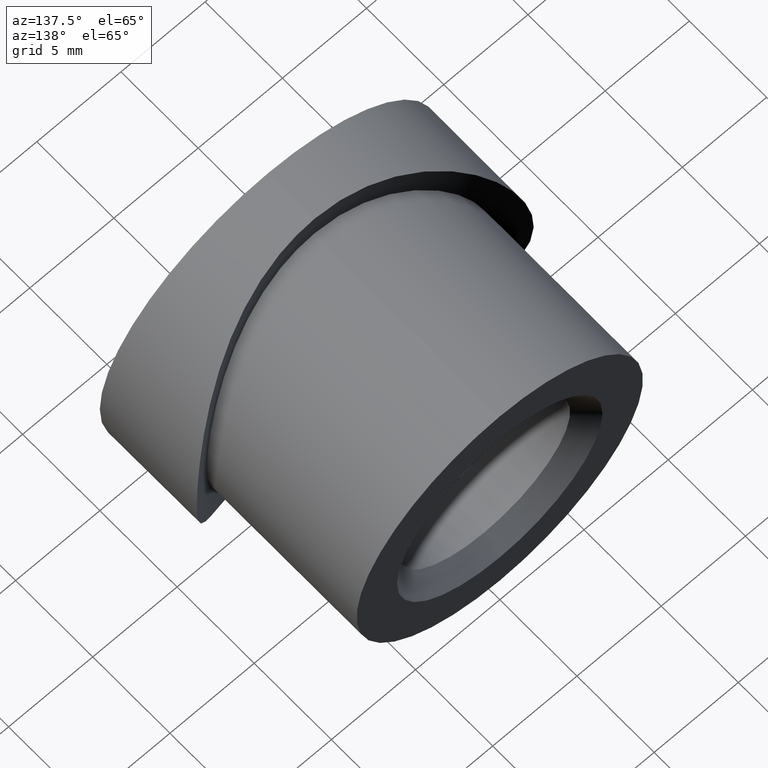
[diagram: clean part render]
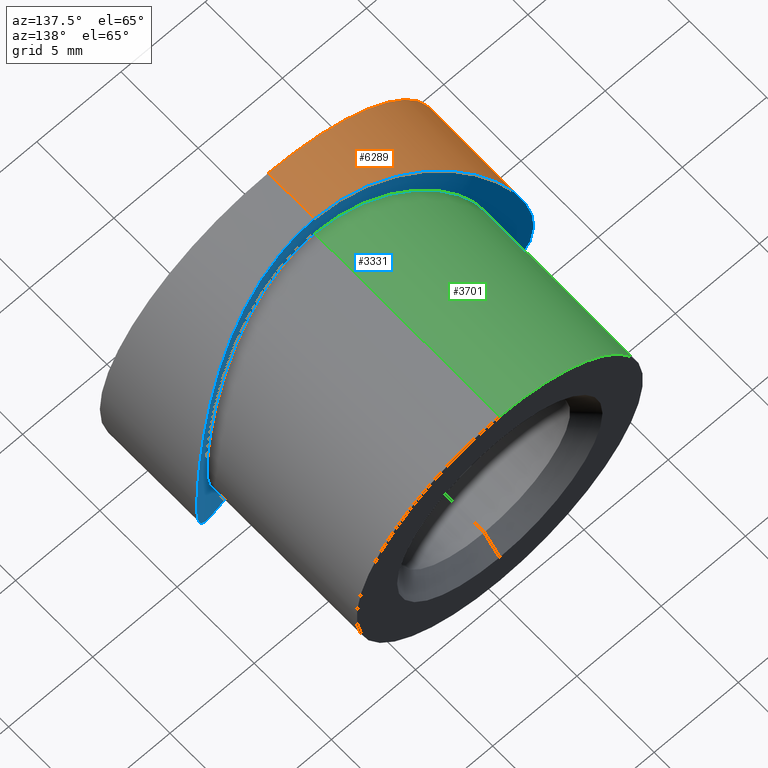
[diagram: same view with three faces highlighted in distinct colors, each labeled with its STEP entity id]
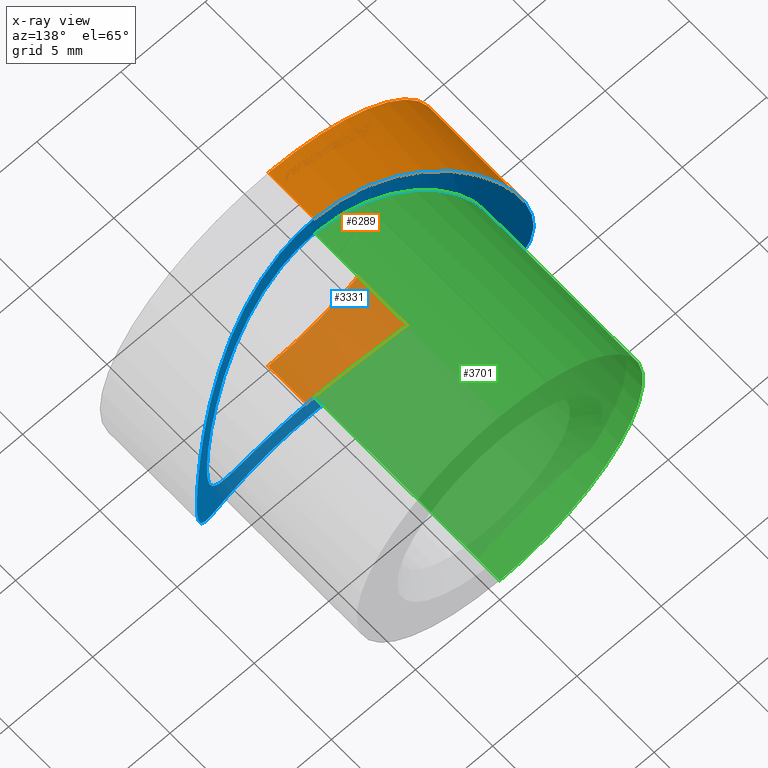
[diagram: x-ray of the same camera — body ghosted, the three highlighted faces saturated]
A machine part, auxiliary view with three faces highlighted in distinct colors.
The next image is the same camera in x-ray (body ghosted, the three faces saturated) — at least one of them is partly hidden behind the body in this view.
Their STEP definitions:

[orange] entity #6289 — the highlighted cylindrical surface (partial cylindrical patch) has radius 10 mm, axis along (-0, -1, -0).
#227 = CARTESIAN_POINT ( 'NONE',  ( 1.225188933121142300E-015, 2.999999999999997300, 10.00000000000000000 ) ) ;
#729 = CYLINDRICAL_SURFACE ( 'NONE', #4367, 10.00000000000000000 ) ;
#733 = DIRECTION ( 'NONE',  ( 0.0000000000000000000, 0.0000000000000000000, -1.000000000000000000 ) ) ;
#862 = CARTESIAN_POINT ( 'NONE',  ( -7.533810538168605600, 4.769737268852943600, -6.607168231742838000 ) ) ;
#1011 = CARTESIAN_POINT ( 'NONE',  ( -5.060580940614070000, 3.775131084890334800, -8.631096454425890100 ) ) ;
#1167 = DIRECTION ( 'NONE',  ( -0.0000000000000000000, -1.000000000000000000, -0.0000000000000000000 ) ) ;
#1343 = EDGE_CURVE ( 'NONE', #13719, #6485, #11936, .T. ) ;
#1392 = CARTESIAN_POINT ( 'NONE',  ( 0.0000000000000000000, 0.0000000000000000000, -10.00000000000000000 ) ) ;
#1566 = VECTOR ( 'NONE', #1167, 1000.000000000000000 ) ;
#1922 = EDGE_CURVE ( 'NONE', #13719, #7473, #4121, .T. ) ;
#2067 = CARTESIAN_POINT ( 'NONE',  ( -4.192284173626582300, 3.526909901820010500, 9.084705050694509500 ) ) ;
#2121 = CARTESIAN_POINT ( 'NONE',  ( -4.490351264357150800, 3.606612557192649500, -8.941031874722050100 ) ) ;
#2175 = CARTESIAN_POINT ( 'NONE',  ( -1.339534587672687000, 3.040475105947003000, 9.932229964423770600 ) ) ;
#2421 = CARTESIAN_POINT ( 'NONE',  ( -1.466283327460540800E-016, 2.999999999999998700, -10.00000000000000000 ) ) ;
#3091 = EDGE_LOOP ( 'NONE', ( #12580, #4343, #12506, #8846 ) ) ;
#3164 = CARTESIAN_POINT ( 'NONE',  ( -4.193427904635070600, 3.527150437412382500, -9.084283319739130400 ) ) ;
#3267 = CARTESIAN_POINT ( 'NONE',  ( -3.280779213787568400, 3.310652688593339800, -9.469564501550749500 ) ) ;
#3319 = CARTESIAN_POINT ( 'NONE',  ( -5.866237467346308200, 4.051616493001249700, -8.104928215079716800 ) ) ;
#3373 = CARTESIAN_POINT ( 'NONE',  ( -3.279813348102926400, 3.319128784054842900, 9.452708858731764300 ) ) ;
#3875 = EDGE_CURVE ( 'NONE', #13146, #6485, #14782, .T. ) ;
#4121 = B_SPLINE_CURVE_WITH_KNOTS ( 'NONE', 3,
 ( #4395, #12639, #2175, #14813, #7847, #3373, #4537, #2067, #8965, #14908, #10286, #4490, #6810, #14963, #4441, #7993, #15013, #5696, #11361, #11412, #12482, #13681, #5539, #8045, #7944, #12533, #6715, #12435, #9119, #5587, #5643, #12585, #14863, #10137, #862, #7896, #13723, #9070, #3319, #10093, #1011, #2121, #3164, #3267, #11260, #4342, #5491, #13631, #10186, #6766 ),
 .UNSPECIFIED., .F., .F.,
 ( 4, 2, 2, 2, 2, 2, 2, 2, 2, 2, 2, 2, 2, 2, 2, 2, 2, 2, 2, 2, 2, 2, 2, 2, 4 ),
 ( 0.03206156997506608800, 0.03406157948369011000, 0.03506158423800211800, 0.03606158899231412500, 0.03706159374662613300, 0.03806159850093814000, 0.04006160800956216200, 0.04206161751818617700, 0.04406162702681019900, 0.04506163178112220600, 0.04606163653543421400, 0.04706164128974622800, 0.04806164604405823600, 0.05006165555268225800, 0.05106166030699427200, 0.05206166506130627300, 0.05406167456993030100, 0.05606168407855431600, 0.05706168883286633100, 0.05806169358717833800, 0.05906169834149034600, 0.06006170309580236000, 0.06206171260442637500, 0.06306171735873837600, 0.06406172211305039000 ),
 .UNSPECIFIED. ) ;
#4342 = CARTESIAN_POINT ( 'NONE',  ( -1.679616028608141600, 3.080739766579398500, -9.863492310789359500 ) ) ;
#4343 = ORIENTED_EDGE ( 'NONE', *, *, #1922, .T. ) ;
#4367 = AXIS2_PLACEMENT_3D ( 'NONE', #14354, #9969, #733 ) ;
#4395 = CARTESIAN_POINT ( 'NONE',  ( 1.225188933121142300E-015, 2.999999999999997300, 10.00000000000000000 ) ) ;
#4441 = CARTESIAN_POINT ( 'NONE',  ( -7.943393107603061900, 4.984194912412932300, 6.108133320963098400 ) ) ;
#4490 = CARTESIAN_POINT ( 'NONE',  ( -6.141152519904959900, 4.148660270383914800, 7.918680788573660800 ) ) ;
#4537 = CARTESIAN_POINT ( 'NONE',  ( -3.589299974420798700, 3.383809103518677000, 9.339381036459382600 ) ) ;
#5179 = CARTESIAN_POINT ( 'NONE',  ( 1.224646799147353300E-015, 0.0000000000000000000, 10.00000000000000000 ) ) ;
#5491 = CARTESIAN_POINT ( 'NONE',  ( -1.350133940281849700, 3.050826384924564000, -9.914156226876418300 ) ) ;
#5509 = DIRECTION ( 'NONE',  ( 0.0000000000000000000, 1.000000000000000000, 0.0000000000000000000 ) ) ;
#5539 = CARTESIAN_POINT ( 'NONE',  ( -9.914589858655853400, 6.225566593096225200, 1.346806544646832700 ) ) ;
#5587 = CARTESIAN_POINT ( 'NONE',  ( -9.455690801299363500, 5.902728133671695700, -3.270852961406679700 ) ) ;
#5643 = CARTESIAN_POINT ( 'NONE',  ( -9.343665910047683100, 5.827120587215029300, -3.577969511357527400 ) ) ;
#5696 = CARTESIAN_POINT ( 'NONE',  ( -9.340152656728882600, 5.824775826013354400, 3.587146967649277300 ) ) ;
#6163 = FACE_OUTER_BOUND ( 'NONE', #3091, .T. ) ;
#6289 = ADVANCED_FACE ( 'NONE', ( #6163 ), #729, .T. ) ;
#6485 = VERTEX_POINT ( 'NONE', #5179 ) ;
#6715 = CARTESIAN_POINT ( 'NONE',  ( -9.933142741749932700, 6.238170385896064700, -1.334042004649898000 ) ) ;
#6766 = CARTESIAN_POINT ( 'NONE',  ( -1.466283327460540800E-016, 2.999999999999998700, -10.00000000000000000 ) ) ;
#6810 = CARTESIAN_POINT ( 'NONE',  ( -6.632287662857884000, 4.352212301968402000, 7.511286137882906100 ) ) ;
#7473 = VERTEX_POINT ( 'NONE', #2421 ) ;
#7758 = DIRECTION ( 'NONE',  ( 0.0000000000000000000, 0.0000000000000000000, 1.000000000000000000 ) ) ;
#7847 = CARTESIAN_POINT ( 'NONE',  ( -2.643719411718161300, 3.205552684794162700, 9.649954820539045700 ) ) ;
#7896 = CARTESIAN_POINT ( 'NONE',  ( -6.853058287576113000, 4.454525878575706700, -7.289638909025422100 ) ) ;
#7944 = CARTESIAN_POINT ( 'NONE',  ( -9.999951102503544600, 6.288160967213432400, 0.3374805287368105600 ) ) ;
#7993 = CARTESIAN_POINT ( 'NONE',  ( -8.655024412312256400, 5.386936445333434500, 5.049488998983402900 ) ) ;
#8045 = CARTESIAN_POINT ( 'NONE',  ( -9.982649008586786700, 6.275354645668334000, 0.6780108446228543300 ) ) ;
#8846 = ORIENTED_EDGE ( 'NONE', *, *, #3875, .T. ) ;
#8965 = CARTESIAN_POINT ( 'NONE',  ( -4.485778423712710100, 3.605336289160060200, 8.943352755387348200 ) ) ;
#9070 = CARTESIAN_POINT ( 'NONE',  ( -6.122025382636536500, 4.149229360737487000, -7.913471650587375400 ) ) ;
#9087 = CARTESIAN_POINT ( 'NONE',  ( 0.0000000000000000000, 0.0000000000000000000, 0.0000000000000000000 ) ) ;
#9119 = CARTESIAN_POINT ( 'NONE',  ( -9.650494274248703900, 6.036801916075216200, -2.641311774026906100 ) ) ;
#9409 = CARTESIAN_POINT ( 'NONE',  ( 1.224646799147353300E-015, 20.00000000000000000, 10.00000000000000000 ) ) ;
#9969 = DIRECTION ( 'NONE',  ( -0.0000000000000000000, -1.000000000000000000, -0.0000000000000000000 ) ) ;
#10039 = DIRECTION ( 'NONE',  ( -0.0000000000000000000, -1.000000000000000000, -0.0000000000000000000 ) ) ;
#10093 = CARTESIAN_POINT ( 'NONE',  ( -5.335513783503224700, 3.864570505502365400, -8.463740075223245900 ) ) ;
#10137 = CARTESIAN_POINT ( 'NONE',  ( -7.938071713497612900, 4.981302196225715100, -6.115290072296238200 ) ) ;
#10186 = CARTESIAN_POINT ( 'NONE',  ( -0.3386291638565960300, 2.999999999999999100, -10.00000000000000000 ) ) ;
#10286 = CARTESIAN_POINT ( 'NONE',  ( -5.336798744618525000, 3.864947292741665000, 8.463060562553792500 ) ) ;
#11260 = CARTESIAN_POINT ( 'NONE',  ( -2.652604567547781000, 3.197282980631055900, -9.664473668154803600 ) ) ;
#11361 = CARTESIAN_POINT ( 'NONE',  ( -9.454076230187206800, 5.901630572325753800, 3.275573321296006800 ) ) ;
#11412 = CARTESIAN_POINT ( 'NONE',  ( -9.649490700514238700, 6.036097717235815500, 2.645045778444339300 ) ) ;
#11936 = LINE ( 'NONE', #9409, #1566 ) ;
#12078 = VECTOR ( 'NONE', #10039, 1000.000000000000000 ) ;
#12080 = AXIS2_PLACEMENT_3D ( 'NONE', #9087, #5509, #7758 ) ;
#12435 = CARTESIAN_POINT ( 'NONE',  ( -9.733647711116955000, 6.095535823642137500, -2.316862196032627400 ) ) ;
#12482 = CARTESIAN_POINT ( 'NONE',  ( -9.731545877590789900, 6.094050350619966100, 2.325241111260654600 ) ) ;
#12506 = ORIENTED_EDGE ( 'NONE', *, *, #12566, .T. ) ;
#12533 = CARTESIAN_POINT ( 'NONE',  ( -10.00009747873774800, 6.288268899935995500, -0.6706049915531011600 ) ) ;
#12566 = EDGE_CURVE ( 'NONE', #7473, #13146, #12823, .T. ) ;
#12580 = ORIENTED_EDGE ( 'NONE', *, *, #1343, .F. ) ;
#12585 = CARTESIAN_POINT ( 'NONE',  ( -8.964963698739582700, 5.579650160677067200, -4.478086615000441900 ) ) ;
#12639 = CARTESIAN_POINT ( 'NONE',  ( -0.6756809508334731300, 3.000000000000000400, 10.00000000000000200 ) ) ;
#12823 = LINE ( 'NONE', #14897, #12078 ) ;
#13146 = VERTEX_POINT ( 'NONE', #1392 ) ;
#13631 = CARTESIAN_POINT ( 'NONE',  ( -0.6802471019827781600, 3.010393125539073900, -9.982515676314138300 ) ) ;
#13681 = CARTESIAN_POINT ( 'NONE',  ( -9.864093923545578200, 6.188785303224160600, 1.676121254749238800 ) ) ;
#13719 = VERTEX_POINT ( 'NONE', #227 ) ;
#13723 = CARTESIAN_POINT ( 'NONE',  ( -6.615042013530144000, 4.350496375315599600, -7.506227248726698800 ) ) ;
#14354 = CARTESIAN_POINT ( 'NONE',  ( 0.0000000000000000000, 20.00000000000000000, 0.0000000000000000000 ) ) ;
#14782 = CIRCLE ( 'NONE', #12080, 10.00000000000000000 ) ;
#14813 = CARTESIAN_POINT ( 'NONE',  ( -2.318497733288400000, 3.157035515536005900, 9.733213986406479300 ) ) ;
#14863 = CARTESIAN_POINT ( 'NONE',  ( -8.652994366091226300, 5.385669894219551800, -5.053260699523557200 ) ) ;
#14897 = CARTESIAN_POINT ( 'NONE',  ( 0.0000000000000000000, 20.00000000000000000, -10.00000000000000000 ) ) ;
#14908 = CARTESIAN_POINT ( 'NONE',  ( -5.057392320905208300, 3.774114641570264900, 8.632991919745437700 ) ) ;
#14963 = CARTESIAN_POINT ( 'NONE',  ( -7.532671409876859200, 4.769299598262015200, 6.607989143368243400 ) ) ;
#15013 = CARTESIAN_POINT ( 'NONE',  ( -8.960341744308348000, 5.576730053995310900, 4.487379625044569700 ) ) ;

[blue] entity #3331 — the highlighted cylindrical surface (partial cylindrical patch) has radius 16.85 mm, axis along (-0, -0, 1).
#227 = CARTESIAN_POINT ( 'NONE',  ( 1.225188933121142300E-015, 2.999999999999997300, 10.00000000000000000 ) ) ;
#264 = EDGE_CURVE ( 'NONE', #7104, #5271, #9768, .T. ) ;
#405 = CARTESIAN_POINT ( 'NONE',  ( -6.404417320789222300, 4.259097162773285200, 5.615287087604626100 ) ) ;
#462 = CARTESIAN_POINT ( 'NONE',  ( -4.294532115864584800, 3.549551500944707200, 7.355836056765519400 ) ) ;
#507 = CARTESIAN_POINT ( 'NONE',  ( -6.209719928210005500, 4.184598051321241700, -5.810718880699787400 ) ) ;
#602 = CARTESIAN_POINT ( 'NONE',  ( 5.200472829868576100, 3.821044698431901300, -6.729058769454000300 ) ) ;
#647 = CARTESIAN_POINT ( 'NONE',  ( 7.625533637294972200, 4.822296754397847900, -3.795512805978792600 ) ) ;
#696 = CARTESIAN_POINT ( 'NONE',  ( 4.283565053052379700, 3.546508001620654500, 7.362677855416721200 ) ) ;
#750 = CARTESIAN_POINT ( 'NONE',  ( 6.209815640949301500, 4.184652053498751000, -5.810543141876783200 ) ) ;
#760 = FACE_BOUND ( 'NONE', #3865, .T. ) ;
#809 = CARTESIAN_POINT ( 'NONE',  ( 9.650600108130758400, 6.036871370074978300, 2.641093162837215800 ) ) ;
#857 = CARTESIAN_POINT ( 'NONE',  ( 9.914638269993375300, 6.225602332762767900, -1.346053886160625900 ) ) ;
#862 = CARTESIAN_POINT ( 'NONE',  ( -7.533810538168605600, 4.769737268852943600, -6.607168231742838000 ) ) ;
#962 = CARTESIAN_POINT ( 'NONE',  ( 4.497429352338558700, 3.599305889758773500, 8.955866558910884100 ) ) ;
#1011 = CARTESIAN_POINT ( 'NONE',  ( -5.060580940614070000, 3.775131084890334800, -8.631096454425890100 ) ) ;
#1177 = B_SPLINE_CURVE_WITH_KNOTS ( 'NONE', 3,
 ( #4177, #10978, #9942, #1747, #2943, #11037, #4128, #11150, #1906, #9113, #12581, #10045, #10086, #3108, #12527, #6710, #13718, #11408, #14856, #5637, #857, #7840, #9011, #9065, #2116, #12378, #809, #11200, #2010, #5533, #10230, #14904, #5584, #3313, #10180, #2062, #13675, #3211, #11356, #8913, #962, #4278, #14756, #4486, #11306, #6553, #7941, #14702, #7891, #7733 ),
 .UNSPECIFIED., .F., .F.,
 ( 4, 2, 2, 2, 2, 2, 2, 2, 2, 2, 2, 2, 2, 2, 2, 2, 2, 2, 2, 2, 2, 2, 2, 2, 4 ),
 ( 1.800166669058194200E-019, 0.002003848123441634900, 0.004007696246883269700, 0.006011544370324905000, 0.008015392493766539500, 0.009017316555487356700, 0.01001924061720817400, 0.01202308874064981000, 0.01302501280237062600, 0.01402693686409144100, 0.01502886092581225700, 0.01603078498753306900, 0.01803463311097469600, 0.01903655717269551000, 0.02003848123441632400, 0.02104040529613713700, 0.02204232935785795400, 0.02404617748129957800, 0.02504810154302039200, 0.02605002560474120300, 0.02805387372818283300, 0.02905579778990365100, 0.03005772185162446400, 0.03105964591334527800, 0.03206156997506608800 ),
 .UNSPECIFIED. ) ;
#1293 = CARTESIAN_POINT ( 'NONE',  ( -0.2856035269092336300, 3.000000000000000000, -8.500000000000003600 ) ) ;
#1336 = CARTESIAN_POINT ( 'NONE',  ( -0.5711758425312568600, 3.007287819282370700, -8.485580024712323400 ) ) ;
#1437 = CARTESIAN_POINT ( 'NONE',  ( 3.805325957498479500, 3.426971460587142600, -7.620984144164115300 ) ) ;
#1590 = CARTESIAN_POINT ( 'NONE',  ( -8.388651904236887400, 5.236406434015601800, -1.400030571166174700 ) ) ;
#1739 = CARTESIAN_POINT ( 'NONE',  ( 6.203903267805444900, 4.182305768016966000, 5.816862327023303100 ) ) ;
#1747 = CARTESIAN_POINT ( 'NONE',  ( 2.645048360533949400, 3.195986902405782500, -9.666704912094758100 ) ) ;
#1750 = CARTESIAN_POINT ( 'NONE',  ( -7.614637229006294900, 4.817995729279967800, 3.787286309528073800 ) ) ;
#1829 = ORIENTED_EDGE ( 'NONE', *, *, #7435, .T. ) ;
#1906 = CARTESIAN_POINT ( 'NONE',  ( 6.633716695131386800, 4.352854253808797800, -7.509924125372399400 ) ) ;
#1922 = EDGE_CURVE ( 'NONE', #13719, #7473, #4121, .T. ) ;
#2010 = CARTESIAN_POINT ( 'NONE',  ( 9.342587131268187400, 5.826401513529987100, 3.580772762709046200 ) ) ;
#2062 = CARTESIAN_POINT ( 'NONE',  ( 6.853335735550260200, 4.454668339102299900, 7.289310746709299200 ) ) ;
#2067 = CARTESIAN_POINT ( 'NONE',  ( -4.192284173626582300, 3.526909901820010500, 9.084705050694509500 ) ) ;
#2116 = CARTESIAN_POINT ( 'NONE',  ( 9.932390684453427100, 6.237630009761055300, 1.338054687176356100 ) ) ;
#2121 = CARTESIAN_POINT ( 'NONE',  ( -4.490351264357150800, 3.606612557192649500, -8.941031874722050100 ) ) ;
#2175 = CARTESIAN_POINT ( 'NONE',  ( -1.339534587672687000, 3.040475105947003000, 9.932229964423770600 ) ) ;
#2421 = CARTESIAN_POINT ( 'NONE',  ( -1.466283327460540800E-016, 2.999999999999998700, -10.00000000000000000 ) ) ;
#2517 = CARTESIAN_POINT ( 'NONE',  ( 1.633521475782143700E-017, 2.999999999999997800, -8.500000000000000000 ) ) ;
#2573 = CARTESIAN_POINT ( 'NONE',  ( 0.5722372562755999600, 2.999999999999999600, -8.500000000000001800 ) ) ;
#2782 = CARTESIAN_POINT ( 'NONE',  ( -6.743455895127528500, 4.407072622693456200, -5.181794388838386400 ) ) ;
#2837 = CARTESIAN_POINT ( 'NONE',  ( -8.217201298065269600, 5.138884700685753000, 2.246817680112910900 ) ) ;
#2895 = CARTESIAN_POINT ( 'NONE',  ( -0.5636601244929033700, 2.999999999999997800, 8.500000000000007100 ) ) ;
#2936 = CARTESIAN_POINT ( 'NONE',  ( 8.276120066222437900, 5.172383402612333600, -1.958239905077168600 ) ) ;
#2943 = CARTESIAN_POINT ( 'NONE',  ( 3.288676523352205700, 3.312412656959397200, -9.466455781513461800 ) ) ;
#2947 = CARTESIAN_POINT ( 'NONE',  ( -2.773123477158576200, 3.221374087712976400, 8.054524784365366200 ) ) ;
#3108 = CARTESIAN_POINT ( 'NONE',  ( 8.656863742950770700, 5.387995040867106200, -5.046639876702575300 ) ) ;
#3164 = CARTESIAN_POINT ( 'NONE',  ( -4.193427904635070600, 3.527150437412382500, -9.084283319739130400 ) ) ;
#3211 = CARTESIAN_POINT ( 'NONE',  ( 6.118282981185176400, 4.147744110257509200, 7.916438908220826000 ) ) ;
#3267 = CARTESIAN_POINT ( 'NONE',  ( -3.280779213787568400, 3.310652688593339800, -9.469564501550749500 ) ) ;
#3313 = CARTESIAN_POINT ( 'NONE',  ( 7.935261720371997300, 4.979765028684183500, 6.119131503947035500 ) ) ;
#3319 = CARTESIAN_POINT ( 'NONE',  ( -5.866237467346308200, 4.051616493001249700, -8.104928215079716800 ) ) ;
#3331 = ADVANCED_FACE ( 'NONE', ( #760, #13676 ), #4762, .F. ) ;
#3373 = CARTESIAN_POINT ( 'NONE',  ( -3.279813348102926400, 3.319128784054842900, 9.452708858731764300 ) ) ;
#3559 = CARTESIAN_POINT ( 'NONE',  ( -3.804053815574705200, 3.426730695401754900, -7.621488338969060200 ) ) ;
#3813 = CARTESIAN_POINT ( 'NONE',  ( 1.040949839279391800E-015, 2.999999999999997800, 8.500000000000000000 ) ) ;
#3865 = EDGE_LOOP ( 'NONE', ( #6065, #1829 ) ) ;
#4011 = CARTESIAN_POINT ( 'NONE',  ( 8.276642714739090000, 5.172678655887287900, 1.955999932321780000 ) ) ;
#4061 = CARTESIAN_POINT ( 'NONE',  ( 8.387632649590663900, 5.235822123659816400, 1.405833880018222800 ) ) ;
#4074 = CARTESIAN_POINT ( 'NONE',  ( -5.205002100429329200, 3.817047043695518800, 6.742349985185454000 ) ) ;
#4119 = CARTESIAN_POINT ( 'NONE',  ( 7.945661416876109900, 4.990541844629190900, -3.031935821687668000 ) ) ;
#4121 = B_SPLINE_CURVE_WITH_KNOTS ( 'NONE', 3,
 ( #4395, #12639, #2175, #14813, #7847, #3373, #4537, #2067, #8965, #14908, #10286, #4490, #6810, #14963, #4441, #7993, #15013, #5696, #11361, #11412, #12482, #13681, #5539, #8045, #7944, #12533, #6715, #12435, #9119, #5587, #5643, #12585, #14863, #10137, #862, #7896, #13723, #9070, #3319, #10093, #1011, #2121, #3164, #3267, #11260, #4342, #5491, #13631, #10186, #6766 ),
 .UNSPECIFIED., .F., .F.,
 ( 4, 2, 2, 2, 2, 2, 2, 2, 2, 2, 2, 2, 2, 2, 2, 2, 2, 2, 2, 2, 2, 2, 2, 2, 4 ),
 ( 0.03206156997506608800, 0.03406157948369011000, 0.03506158423800211800, 0.03606158899231412500, 0.03706159374662613300, 0.03806159850093814000, 0.04006160800956216200, 0.04206161751818617700, 0.04406162702681019900, 0.04506163178112220600, 0.04606163653543421400, 0.04706164128974622800, 0.04806164604405823600, 0.05006165555268225800, 0.05106166030699427200, 0.05206166506130627300, 0.05406167456993030100, 0.05606168407855431600, 0.05706168883286633100, 0.05806169358717833800, 0.05906169834149034600, 0.06006170309580236000, 0.06206171260442637500, 0.06306171735873837600, 0.06406172211305039000 ),
 .UNSPECIFIED. ) ;
#4128 = CARTESIAN_POINT ( 'NONE',  ( 5.065007689135376800, 3.769163625680545000, -8.646800161849505200 ) ) ;
#4177 = CARTESIAN_POINT ( 'NONE',  ( -1.466283327460540800E-016, 2.999999999999998700, -10.00000000000000000 ) ) ;
#4199 = CARTESIAN_POINT ( 'NONE',  ( 1.040949839279391800E-015, 2.999999999999997800, 8.500000000000000000 ) ) ;
#4219 = CARTESIAN_POINT ( 'NONE',  ( 7.947191943317352300, 4.991350383080685100, 3.028186139557865500 ) ) ;
#4246 = ORIENTED_EDGE ( 'NONE', *, *, #11430, .F. ) ;
#4278 = CARTESIAN_POINT ( 'NONE',  ( 3.586653932380229600, 3.383191838418783300, 9.340477381773116200 ) ) ;
#4283 = CARTESIAN_POINT ( 'NONE',  ( -4.299161594226157000, 3.550783359824803800, -7.353110633986393200 ) ) ;
#4342 = CARTESIAN_POINT ( 'NONE',  ( -1.679616028608141600, 3.080739766579398500, -9.863492310789359500 ) ) ;
#4395 = CARTESIAN_POINT ( 'NONE',  ( 1.225188933121142300E-015, 2.999999999999997300, 10.00000000000000000 ) ) ;
#4441 = CARTESIAN_POINT ( 'NONE',  ( -7.943393107603061900, 4.984194912412932300, 6.108133320963098400 ) ) ;
#4486 = CARTESIAN_POINT ( 'NONE',  ( 2.640438070360896700, 3.205070759625764200, 9.650780558980351000 ) ) ;
#4490 = CARTESIAN_POINT ( 'NONE',  ( -6.141152519904959900, 4.148660270383914800, 7.918680788573660800 ) ) ;
#4537 = CARTESIAN_POINT ( 'NONE',  ( -3.589299974420798700, 3.383809103518677000, 9.339381036459382600 ) ) ;
#4762 = CYLINDRICAL_SURFACE ( 'NONE', #14967, 16.85000000000000100 ) ;
#5070 = CARTESIAN_POINT ( 'NONE',  ( -8.485440006761443500, 5.292497612754663900, 0.5716547256440625000 ) ) ;
#5126 = CARTESIAN_POINT ( 'NONE',  ( -6.906567207962633700, 4.479573395230220400, -4.962279153001055900 ) ) ;
#5220 = CARTESIAN_POINT ( 'NONE',  ( 6.905930016013561700, 4.479277022733872300, -4.963249614484210400 ) ) ;
#5234 = CARTESIAN_POINT ( 'NONE',  ( -5.633493103418875800, 3.964265268726127300, 6.388408702390306000 ) ) ;
#5271 = VERTEX_POINT ( 'NONE', #4199 ) ;
#5275 = CARTESIAN_POINT ( 'NONE',  ( 8.207762536389955300, 5.133888453371160000, 2.227343589904274600 ) ) ;
#5288 = CARTESIAN_POINT ( 'NONE',  ( -8.386257542248463500, 5.235028666954509200, 1.414507387831223800 ) ) ;
#5329 = CARTESIAN_POINT ( 'NONE',  ( 8.442931295689996700, 5.267278016158405400, -1.132421583035103200 ) ) ;
#5380 = CARTESIAN_POINT ( 'NONE',  ( 8.486193232358113300, 5.292936788038180600, 0.5614927014386097400 ) ) ;
#5491 = CARTESIAN_POINT ( 'NONE',  ( -1.350133940281849700, 3.050826384924564000, -9.914156226876418300 ) ) ;
#5533 = CARTESIAN_POINT ( 'NONE',  ( 9.090055203775838400, 5.661407920185677500, 4.180522009965339500 ) ) ;
#5539 = CARTESIAN_POINT ( 'NONE',  ( -9.914589858655853400, 6.225566593096225200, 1.346806544646832700 ) ) ;
#5584 = CARTESIAN_POINT ( 'NONE',  ( 8.473248362693665200, 5.283977761504502300, 5.320441656240454600 ) ) ;
#5587 = CARTESIAN_POINT ( 'NONE',  ( -9.455690801299363500, 5.902728133671695700, -3.270852961406679700 ) ) ;
#5637 = CARTESIAN_POINT ( 'NONE',  ( 9.864311778858056100, 6.188941798024260700, -1.674964944568002400 ) ) ;
#5643 = CARTESIAN_POINT ( 'NONE',  ( -9.343665910047683100, 5.827120587215029300, -3.577969511357527400 ) ) ;
#5696 = CARTESIAN_POINT ( 'NONE',  ( -9.340152656728882600, 5.824775826013354400, 3.587146967649277300 ) ) ;
#6048 = ORIENTED_EDGE ( 'NONE', *, *, #1922, .F. ) ;
#6065 = ORIENTED_EDGE ( 'NONE', *, *, #264, .T. ) ;
#6180 = CARTESIAN_POINT ( 'NONE',  ( -8.499675513804419300, 5.300841388707676800, 0.2908162270511318600 ) ) ;
#6222 = CARTESIAN_POINT ( 'NONE',  ( 1.133132351076702000, 3.029049606612519900, -8.442818325451375100 ) ) ;
#6232 = CARTESIAN_POINT ( 'NONE',  ( -7.615087706978422400, 4.818223775350470600, -3.786386457135502100 ) ) ;
#6280 = CARTESIAN_POINT ( 'NONE',  ( -8.431081572726583300, 5.260949377764631200, -1.116724723283512200 ) ) ;
#6307 = CARTESIAN_POINT ( 'NONE',  ( 0.0000000000000000000, 19.84999999999999800, -10.00000000000000000 ) ) ;
#6325 = CARTESIAN_POINT ( 'NONE',  ( 6.392923827254871400, 4.258699384699248500, -5.608518567009684700 ) ) ;
#6380 = CARTESIAN_POINT ( 'NONE',  ( 5.623253626822363800, 3.964429680924312000, -6.379981835820238700 ) ) ;
#6393 = CARTESIAN_POINT ( 'NONE',  ( -7.352793249698085500, 4.688196546864610100, 4.273484426893554100 ) ) ;
#6435 = CARTESIAN_POINT ( 'NONE',  ( 3.796591982522845100, 3.425047369332005200, 7.625092470467314400 ) ) ;
#6553 = CARTESIAN_POINT ( 'NONE',  ( 1.671653943598897100, 3.079944980710309200, 9.864842242803673500 ) ) ;
#6643 = EDGE_LOOP ( 'NONE', ( #4246, #6048 ) ) ;
#6710 = CARTESIAN_POINT ( 'NONE',  ( 9.339381253579812600, 5.824270573177855700, -3.589000057947872700 ) ) ;
#6715 = CARTESIAN_POINT ( 'NONE',  ( -9.933142741749932700, 6.238170385896064700, -1.334042004649898000 ) ) ;
#6766 = CARTESIAN_POINT ( 'NONE',  ( -1.466283327460540800E-016, 2.999999999999998700, -10.00000000000000000 ) ) ;
#6810 = CARTESIAN_POINT ( 'NONE',  ( -6.632287662857884000, 4.352212301968402000, 7.511286137882906100 ) ) ;
#7104 = VERTEX_POINT ( 'NONE', #10607 ) ;
#7250 = CARTESIAN_POINT ( 'NONE',  ( 2.231020210545014800, 3.146124132077297900, -8.206840238983883000 ) ) ;
#7363 = CARTESIAN_POINT ( 'NONE',  ( -7.735685375974867400, 4.880150391044480800, -3.533666635290092300 ) ) ;
#7404 = CARTESIAN_POINT ( 'NONE',  ( 4.978234722581713200, 3.750410612476950100, -6.895186467131608800 ) ) ;
#7415 = CARTESIAN_POINT ( 'NONE',  ( -7.211448124783594900, 4.620236359211787700, -4.507760079459512100 ) ) ;
#7435 = EDGE_CURVE ( 'NONE', #5271, #7104, #12560, .T. ) ;
#7473 = VERTEX_POINT ( 'NONE', #2421 ) ;
#7475 = CARTESIAN_POINT ( 'NONE',  ( -6.395454263962483800, 4.259734827532335000, -5.605653865098281200 ) ) ;
#7515 = CARTESIAN_POINT ( 'NONE',  ( 8.500276067776406200, 5.301192252389705000, 0.2745463526155643700 ) ) ;
#7581 = CARTESIAN_POINT ( 'NONE',  ( -1.137226813780593400, 3.029306346460892000, 8.442311185415418300 ) ) ;
#7624 = CARTESIAN_POINT ( 'NONE',  ( 2.769867139676112100, 3.227013655478802700, 8.040917984302680600 ) ) ;
#7676 = CARTESIAN_POINT ( 'NONE',  ( 3.031175221110753000, 3.272842623679859100, 7.945974656715039300 ) ) ;
#7733 = CARTESIAN_POINT ( 'NONE',  ( 1.225188933121142300E-015, 2.999999999999997300, 10.00000000000000000 ) ) ;
#7840 = CARTESIAN_POINT ( 'NONE',  ( 9.982431040267306000, 6.275194868944001100, -0.6804289937774926600 ) ) ;
#7847 = CARTESIAN_POINT ( 'NONE',  ( -2.643719411718161300, 3.205552684794162700, 9.649954820539045700 ) ) ;
#7891 = CARTESIAN_POINT ( 'NONE',  ( 0.3384888920614187400, 3.000000000000000400, 10.00000000000000500 ) ) ;
#7896 = CARTESIAN_POINT ( 'NONE',  ( -6.853058287576113000, 4.454525878575706700, -7.289638909025422100 ) ) ;
#7941 = CARTESIAN_POINT ( 'NONE',  ( 1.343208000671757900, 3.050315073385234700, 9.915021744110722700 ) ) ;
#7944 = CARTESIAN_POINT ( 'NONE',  ( -9.999951102503544600, 6.288160967213432400, 0.3374805287368105600 ) ) ;
#7993 = CARTESIAN_POINT ( 'NONE',  ( -8.655024412312256400, 5.386936445333434500, 5.049488998983402900 ) ) ;
#8045 = CARTESIAN_POINT ( 'NONE',  ( -9.982649008586786700, 6.275354645668334000, 0.6780108446228543300 ) ) ;
#8425 = CARTESIAN_POINT ( 'NONE',  ( 2.770579020598992400, 3.227099769250630200, -8.040744354764804300 ) ) ;
#8527 = CARTESIAN_POINT ( 'NONE',  ( 3.035462185449176300, 3.273603005085713200, -7.944397117642804300 ) ) ;
#8540 = CARTESIAN_POINT ( 'NONE',  ( -8.500313544202326100, 5.301214147333171300, -0.2715282087245402000 ) ) ;
#8591 = CARTESIAN_POINT ( 'NONE',  ( -8.428911988423035200, 5.259694638068064700, 1.132662317337901300 ) ) ;
#8646 = CARTESIAN_POINT ( 'NONE',  ( -7.209026921290821100, 4.619082857636846600, 4.511681990856029500 ) ) ;
#8743 = CARTESIAN_POINT ( 'NONE',  ( 8.499435359127536700, 5.300701082273299400, -0.5743468365018916700 ) ) ;
#8798 = CARTESIAN_POINT ( 'NONE',  ( 7.365753728759897500, 4.691433150624188600, -4.277678867596138800 ) ) ;
#8913 = CARTESIAN_POINT ( 'NONE',  ( 5.064359540053120100, 3.769197819658140600, 8.646585581632345800 ) ) ;
#8965 = CARTESIAN_POINT ( 'NONE',  ( -4.485778423712710100, 3.605336289160060200, 8.943352755387348200 ) ) ;
#9011 = CARTESIAN_POINT ( 'NONE',  ( 9.999886021206545900, 6.288112978544043100, -0.3419769542689664000 ) ) ;
#9065 = CARTESIAN_POINT ( 'NONE',  ( 10.00022627487563100, 6.288363869697814600, 0.6739058901506636000 ) ) ;
#9070 = CARTESIAN_POINT ( 'NONE',  ( -6.122025382636536500, 4.149229360737487000, -7.913471650587375400 ) ) ;
#9113 = CARTESIAN_POINT ( 'NONE',  ( 7.307702884727893500, 4.665096825595861100, -6.833649679239381500 ) ) ;
#9119 = CARTESIAN_POINT ( 'NONE',  ( -9.650494274248703900, 6.036801916075216200, -2.641311774026906100 ) ) ;
#9768 = B_SPLINE_CURVE_WITH_KNOTS ( 'NONE', 3,
 ( #13189, #2573, #6222, #14219, #7250, #8425, #8527, #1437, #14372, #7404, #602, #6380, #12156, #750, #6325, #9781, #5220, #8798, #647, #4119, #13466, #14586, #2936, #5329, #8743, #7515, #5380, #12206, #4061, #4011, #5275, #9934, #4219, #11027, #14637, #11141, #10922, #11085, #1739, #13406, #13353, #696, #6435, #7676, #7624, #12259, #12104, #14476, #9878, #10971 ),
 .UNSPECIFIED., .F., .F.,
 ( 4, 2, 2, 2, 2, 2, 2, 2, 2, 2, 2, 2, 2, 2, 2, 2, 2, 2, 2, 2, 2, 2, 2, 2, 4 ),
 ( 8.315771140123535000E-020, 0.001690479458088860200, 0.002535719187133291100, 0.003380958916177722500, 0.005071438374266583200, 0.005916678103311013300, 0.006761917832355443400, 0.007607157561399872600, 0.008452397290444300900, 0.01014287674853315400, 0.01098811647757758400, 0.01183335620662201300, 0.01352383566471086900, 0.01436907539375529400, 0.01521431512279972300, 0.01605955485184414700, 0.01690479458088857800, 0.01859527403897743400, 0.01944051376802186100, 0.02028575349706628800, 0.02197623295515514400, 0.02366671241324399800, 0.02451195214228842400, 0.02535719187133285800, 0.02704767132942171400 ),
 .UNSPECIFIED. ) ;
#9781 = CARTESIAN_POINT ( 'NONE',  ( 6.740592876713215300, 4.405825123750906500, -5.185495467935391300 ) ) ;
#9878 = CARTESIAN_POINT ( 'NONE',  ( 0.5646767156595564600, 2.999999999999997300, 8.500000000000005300 ) ) ;
#9934 = CARTESIAN_POINT ( 'NONE',  ( 8.043356077368757800, 5.043389046806010100, 2.762760998332863600 ) ) ;
#9942 = CARTESIAN_POINT ( 'NONE',  ( 1.342877021522328500, 3.040802684557765400, -9.931673876650783900 ) ) ;
#10045 = CARTESIAN_POINT ( 'NONE',  ( 7.928362050010507600, 4.980032628159453800, -6.102755129522440900 ) ) ;
#10086 = CARTESIAN_POINT ( 'NONE',  ( 8.121203700205406100, 5.084816466251762500, -5.843673197318200800 ) ) ;
#10093 = CARTESIAN_POINT ( 'NONE',  ( -5.335513783503224700, 3.864570505502365400, -8.463740075223245900 ) ) ;
#10137 = CARTESIAN_POINT ( 'NONE',  ( -7.938071713497612900, 4.981302196225715100, -6.115290072296238200 ) ) ;
#10180 = CARTESIAN_POINT ( 'NONE',  ( 7.530919466858437200, 4.768370691582080500, 6.610166370730781600 ) ) ;
#10186 = CARTESIAN_POINT ( 'NONE',  ( -0.3386291638565960300, 2.999999999999999100, -10.00000000000000000 ) ) ;
#10203 = DIRECTION ( 'NONE',  ( 1.000000000000000000, 0.0000000000000000000, 0.0000000000000000000 ) ) ;
#10230 = CARTESIAN_POINT ( 'NONE',  ( 8.949863588330917000, 5.572217324581404600, 4.472677200493392600 ) ) ;
#10286 = CARTESIAN_POINT ( 'NONE',  ( -5.336798744618525000, 3.864947292741665000, 8.463060562553792500 ) ) ;
#10577 = CARTESIAN_POINT ( 'NONE',  ( -1.138583050238951300, 3.036112166328281500, -8.428222756702426800 ) ) ;
#10607 = CARTESIAN_POINT ( 'NONE',  ( 1.633521475782143700E-017, 2.999999999999997800, -8.500000000000000000 ) ) ;
#10922 = CARTESIAN_POINT ( 'NONE',  ( 6.736838213346321600, 4.404176771242802600, 5.190423110250583800 ) ) ;
#10935 = CARTESIAN_POINT ( 'NONE',  ( -5.629036810365076500, 3.962640125261152100, -6.392514886714998600 ) ) ;
#10971 = CARTESIAN_POINT ( 'NONE',  ( 1.040949839279391800E-015, 2.999999999999997800, 8.500000000000000000 ) ) ;
#10978 = CARTESIAN_POINT ( 'NONE',  ( 0.6785581884593040500, 3.000000000000000400, -10.00000000000000000 ) ) ;
#10982 = CARTESIAN_POINT ( 'NONE',  ( -3.809025906633711800, 3.427675706741607300, 7.619508183873628000 ) ) ;
#11027 = CARTESIAN_POINT ( 'NONE',  ( 7.623823243342608100, 4.821389550477801900, 3.799789924880514900 ) ) ;
#11037 = CARTESIAN_POINT ( 'NONE',  ( 4.495595416156920300, 3.598944334038678400, -8.956494860871995200 ) ) ;
#11040 = CARTESIAN_POINT ( 'NONE',  ( -7.733228283911534700, 4.878889905139788900, 3.538789656814559100 ) ) ;
#11085 = CARTESIAN_POINT ( 'NONE',  ( 6.387595432457058700, 4.256505557827250800, 5.614633181916723000 ) ) ;
#11097 = CARTESIAN_POINT ( 'NONE',  ( -5.208805516790738100, 3.818293959004751300, -6.739389549296241500 ) ) ;
#11141 = CARTESIAN_POINT ( 'NONE',  ( 6.902352953679957700, 4.477670432345341600, 4.968207147608859800 ) ) ;
#11150 = CARTESIAN_POINT ( 'NONE',  ( 6.140475774217971000, 4.148338984206849200, -7.919344240289302000 ) ) ;
#11200 = CARTESIAN_POINT ( 'NONE',  ( 9.454931843963956700, 5.902209177797941700, 3.273181841547339500 ) ) ;
#11260 = CARTESIAN_POINT ( 'NONE',  ( -2.652604567547781000, 3.197282980631055900, -9.664473668154803600 ) ) ;
#11306 = CARTESIAN_POINT ( 'NONE',  ( 2.320269341977798700, 3.157321292320067300, 9.732722618221041300 ) ) ;
#11356 = CARTESIAN_POINT ( 'NONE',  ( 5.861517766804046100, 4.049858590886153700, 8.108353989084060100 ) ) ;
#11361 = CARTESIAN_POINT ( 'NONE',  ( -9.454076230187206800, 5.901630572325753800, 3.275573321296006800 ) ) ;
#11408 = CARTESIAN_POINT ( 'NONE',  ( 9.648895405847479600, 6.035674304937759700, -2.647466017746822800 ) ) ;
#11412 = CARTESIAN_POINT ( 'NONE',  ( -9.649490700514238700, 6.036097717235815500, 2.645045778444339300 ) ) ;
#11430 = EDGE_CURVE ( 'NONE', #7473, #13719, #1177, .T. ) ;
#12012 = CARTESIAN_POINT ( 'NONE',  ( -8.486716906060614500, 5.293243125596244000, -0.5530341309064111800 ) ) ;
#12104 = CARTESIAN_POINT ( 'NONE',  ( 1.958003162396028800, 3.111820849341668800, 8.276261446234736100 ) ) ;
#12156 = CARTESIAN_POINT ( 'NONE',  ( 5.824980213424493200, 4.037519420004254100, -6.196275285314802900 ) ) ;
#12167 = CARTESIAN_POINT ( 'NONE',  ( -2.238940722895700100, 3.140237456757452300, 8.219066091517399600 ) ) ;
#12206 = CARTESIAN_POINT ( 'NONE',  ( 8.429744574600615400, 5.260175760449880200, 1.127011995358032000 ) ) ;
#12219 = CARTESIAN_POINT ( 'NONE',  ( -8.052522495250810800, 5.046716238701018900, 2.776740745649071100 ) ) ;
#12259 = CARTESIAN_POINT ( 'NONE',  ( 2.234248214218864000, 3.146587956382816300, 8.205891841780486500 ) ) ;
#12378 = CARTESIAN_POINT ( 'NONE',  ( 9.733749060507930700, 6.095609624850513200, 2.316208753692983600 ) ) ;
#12435 = CARTESIAN_POINT ( 'NONE',  ( -9.733647711116955000, 6.095535823642137500, -2.316862196032627400 ) ) ;
#12482 = CARTESIAN_POINT ( 'NONE',  ( -9.731545877590789900, 6.094050350619966100, 2.325241111260654600 ) ) ;
#12499 = DIRECTION ( 'NONE',  ( -0.0000000000000000000, -0.0000000000000000000, 1.000000000000000000 ) ) ;
#12527 = CARTESIAN_POINT ( 'NONE',  ( 8.961538766441455200, 5.577514737995436200, -4.484492992550950200 ) ) ;
#12533 = CARTESIAN_POINT ( 'NONE',  ( -10.00009747873774800, 6.288268899935995500, -0.6706049915531011600 ) ) ;
#12560 = B_SPLINE_CURVE_WITH_KNOTS ( 'NONE', 3,
 ( #3813, #2895, #7581, #12167, #2947, #10982, #462, #4074, #5234, #405, #13366, #8646, #6393, #1750, #11040, #12219, #2837, #5288, #8591, #5070, #6180, #8540, #12012, #6280, #1590, #14328, #13199, #7363, #6232, #13252, #7415, #5126, #2782, #7475, #507, #10935, #11097, #4283, #3559, #13968, #14161, #14065, #10577, #1336, #1293, #2517 ),
 .UNSPECIFIED., .F., .F.,
 ( 4, 2, 2, 2, 2, 2, 2, 2, 2, 2, 2, 2, 2, 2, 2, 2, 2, 2, 2, 2, 2, 2, 4 ),
 ( 0.02704767132942171400, 0.02873510740633894400, 0.03042254348325617400, 0.03210997956017340400, 0.03379741563709062800, 0.03548485171400785800, 0.03632856975246646900, 0.03717228779092508800, 0.03885972386784232500, 0.03970344190630093600, 0.04054715994475955500, 0.04139087798321816600, 0.04223459602167678500, 0.04392203209859401500, 0.04476575013705262600, 0.04560946817551124500, 0.04645318621396986300, 0.04729690425242848200, 0.04898434032934571900, 0.05067177640626294200, 0.05235921248318017900, 0.05320293052163879000, 0.05404664856009740200 ),
 .UNSPECIFIED. ) ;
#12581 = CARTESIAN_POINT ( 'NONE',  ( 7.521666125133544200, 4.770232324811241000, -6.597505867293927300 ) ) ;
#12585 = CARTESIAN_POINT ( 'NONE',  ( -8.964963698739582700, 5.579650160677067200, -4.478086615000441900 ) ) ;
#12639 = CARTESIAN_POINT ( 'NONE',  ( -0.6756809508334731300, 3.000000000000000400, 10.00000000000000200 ) ) ;
#13189 = CARTESIAN_POINT ( 'NONE',  ( 1.633521475782143700E-017, 2.999999999999997800, -8.500000000000000000 ) ) ;
#13199 = CARTESIAN_POINT ( 'NONE',  ( -8.057890763912936900, 5.049601402660970400, -2.762409987417143100 ) ) ;
#13252 = CARTESIAN_POINT ( 'NONE',  ( -7.353218501295290600, 4.688402626203220800, -4.272757992206162900 ) ) ;
#13353 = CARTESIAN_POINT ( 'NONE',  ( 5.204493118265044200, 3.816721099947060700, 6.743234101550025400 ) ) ;
#13366 = CARTESIAN_POINT ( 'NONE',  ( -6.749869747625250900, 4.407351814283805100, 5.195250960650035700 ) ) ;
#13406 = CARTESIAN_POINT ( 'NONE',  ( 5.625735578221061000, 3.961518876344920100, 6.395178774300044100 ) ) ;
#13466 = CARTESIAN_POINT ( 'NONE',  ( 8.040682663137639400, 5.041933238144119800, -2.770638040132360900 ) ) ;
#13631 = CARTESIAN_POINT ( 'NONE',  ( -0.6802471019827781600, 3.010393125539073900, -9.982515676314138300 ) ) ;
#13675 = CARTESIAN_POINT ( 'NONE',  ( 6.614217990626434200, 4.350117837954815800, 7.507030837683188000 ) ) ;
#13676 = FACE_OUTER_BOUND ( 'NONE', #6643, .T. ) ;
#13681 = CARTESIAN_POINT ( 'NONE',  ( -9.864093923545578200, 6.188785303224160600, 1.676121254749238800 ) ) ;
#13718 = CARTESIAN_POINT ( 'NONE',  ( 9.452015411543031900, 5.900226466992575200, -3.281716552059580100 ) ) ;
#13719 = VERTEX_POINT ( 'NONE', #227 ) ;
#13723 = CARTESIAN_POINT ( 'NONE',  ( -6.615042013530144000, 4.350496375315599600, -7.506227248726698800 ) ) ;
#13968 = CARTESIAN_POINT ( 'NONE',  ( -2.780899731763092100, 3.222877676367825700, -8.051366754452923000 ) ) ;
#14065 = CARTESIAN_POINT ( 'NONE',  ( -1.421417617445908800, 3.057767049586829000, -8.385044578942491000 ) ) ;
#14161 = CARTESIAN_POINT ( 'NONE',  ( -2.249732011165649100, 3.141640777908622600, -8.216222271463346200 ) ) ;
#14219 = CARTESIAN_POINT ( 'NONE',  ( 1.958552533006577400, 3.111928508907654500, -8.276041597639659700 ) ) ;
#14328 = CARTESIAN_POINT ( 'NONE',  ( -8.221740005312771200, 5.141435079723441600, -2.229631531815901000 ) ) ;
#14372 = CARTESIAN_POINT ( 'NONE',  ( 4.290430500195715700, 3.548371132833312300, -7.358524009712986000 ) ) ;
#14476 = CARTESIAN_POINT ( 'NONE',  ( 1.124765018922755400, 3.028315354693151400, 8.444289389507275700 ) ) ;
#14586 = CARTESIAN_POINT ( 'NONE',  ( 8.206163249395693500, 5.132992707852231700, -2.233360150754500200 ) ) ;
#14637 = CARTESIAN_POINT ( 'NONE',  ( 7.362213202819297900, 4.689713482546260100, 4.283695949893960600 ) ) ;
#14702 = CARTESIAN_POINT ( 'NONE',  ( 0.6777104198323250500, 3.010334624659353000, 9.982613510805061100 ) ) ;
#14756 = CARTESIAN_POINT ( 'NONE',  ( 3.272605934213497700, 3.317739627630255300, 9.455132415802271600 ) ) ;
#14813 = CARTESIAN_POINT ( 'NONE',  ( -2.318497733288400000, 3.157035515536005900, 9.733213986406479300 ) ) ;
#14856 = CARTESIAN_POINT ( 'NONE',  ( 9.731543503737869500, 6.094047866354590500, -2.325342011598886800 ) ) ;
#14863 = CARTESIAN_POINT ( 'NONE',  ( -8.652994366091226300, 5.385669894219551800, -5.053260699523557200 ) ) ;
#14904 = CARTESIAN_POINT ( 'NONE',  ( 8.641686142743461500, 5.383611473953473900, 5.042435939093387300 ) ) ;
#14908 = CARTESIAN_POINT ( 'NONE',  ( -5.057392320905208300, 3.774114641570264900, 8.632991919745437700 ) ) ;
#14963 = CARTESIAN_POINT ( 'NONE',  ( -7.532671409876859200, 4.769299598262015200, 6.607989143368243400 ) ) ;
#14967 = AXIS2_PLACEMENT_3D ( 'NONE', #6307, #12499, #10203 ) ;
#15013 = CARTESIAN_POINT ( 'NONE',  ( -8.960341744308348000, 5.576730053995310900, 4.487379625044569700 ) ) ;

[green] entity #3701 — the highlighted cylindrical surface (partial cylindrical patch) has radius 8.5 mm, axis along (0, -1, 0).
#405 = CARTESIAN_POINT ( 'NONE',  ( -6.404417320789222300, 4.259097162773285200, 5.615287087604626100 ) ) ;
#462 = CARTESIAN_POINT ( 'NONE',  ( -4.294532115864584800, 3.549551500944707200, 7.355836056765519400 ) ) ;
#507 = CARTESIAN_POINT ( 'NONE',  ( -6.209719928210005500, 4.184598051321241700, -5.810718880699787400 ) ) ;
#1293 = CARTESIAN_POINT ( 'NONE',  ( -0.2856035269092336300, 3.000000000000000000, -8.500000000000003600 ) ) ;
#1303 = CARTESIAN_POINT ( 'NONE',  ( 0.0000000000000000000, 15.00000000000000000, -8.500000000000000000 ) ) ;
#1336 = CARTESIAN_POINT ( 'NONE',  ( -0.5711758425312568600, 3.007287819282370700, -8.485580024712323400 ) ) ;
#1590 = CARTESIAN_POINT ( 'NONE',  ( -8.388651904236887400, 5.236406434015601800, -1.400030571166174700 ) ) ;
#1750 = CARTESIAN_POINT ( 'NONE',  ( -7.614637229006294900, 4.817995729279967800, 3.787286309528073800 ) ) ;
#2517 = CARTESIAN_POINT ( 'NONE',  ( 1.633521475782143700E-017, 2.999999999999997800, -8.500000000000000000 ) ) ;
#2574 = DIRECTION ( 'NONE',  ( 0.0000000000000000000, -1.000000000000000000, 0.0000000000000000000 ) ) ;
#2634 = EDGE_LOOP ( 'NONE', ( #8733, #10702, #9656, #7543 ) ) ;
#2782 = CARTESIAN_POINT ( 'NONE',  ( -6.743455895127528500, 4.407072622693456200, -5.181794388838386400 ) ) ;
#2837 = CARTESIAN_POINT ( 'NONE',  ( -8.217201298065269600, 5.138884700685753000, 2.246817680112910900 ) ) ;
#2854 = VERTEX_POINT ( 'NONE', #8293 ) ;
#2895 = CARTESIAN_POINT ( 'NONE',  ( -0.5636601244929033700, 2.999999999999997800, 8.500000000000007100 ) ) ;
#2947 = CARTESIAN_POINT ( 'NONE',  ( -2.773123477158576200, 3.221374087712976400, 8.054524784365366200 ) ) ;
#3559 = CARTESIAN_POINT ( 'NONE',  ( -3.804053815574705200, 3.426730695401754900, -7.621488338969060200 ) ) ;
#3701 = ADVANCED_FACE ( 'NONE', ( #10373 ), #7293, .T. ) ;
#3813 = CARTESIAN_POINT ( 'NONE',  ( 1.040949839279391800E-015, 2.999999999999997800, 8.500000000000000000 ) ) ;
#4074 = CARTESIAN_POINT ( 'NONE',  ( -5.205002100429329200, 3.817047043695518800, 6.742349985185454000 ) ) ;
#4199 = CARTESIAN_POINT ( 'NONE',  ( 1.040949839279391800E-015, 2.999999999999997800, 8.500000000000000000 ) ) ;
#4283 = CARTESIAN_POINT ( 'NONE',  ( -4.299161594226157000, 3.550783359824803800, -7.353110633986393200 ) ) ;
#5066 = CARTESIAN_POINT ( 'NONE',  ( 1.040949779275250100E-015, 15.00000000000000000, 8.500000000000000000 ) ) ;
#5070 = CARTESIAN_POINT ( 'NONE',  ( -8.485440006761443500, 5.292497612754663900, 0.5716547256440625000 ) ) ;
#5126 = CARTESIAN_POINT ( 'NONE',  ( -6.906567207962633700, 4.479573395230220400, -4.962279153001055900 ) ) ;
#5222 = LINE ( 'NONE', #5066, #10812 ) ;
#5234 = CARTESIAN_POINT ( 'NONE',  ( -5.633493103418875800, 3.964265268726127300, 6.388408702390306000 ) ) ;
#5271 = VERTEX_POINT ( 'NONE', #4199 ) ;
#5288 = CARTESIAN_POINT ( 'NONE',  ( -8.386257542248463500, 5.235028666954509200, 1.414507387831223800 ) ) ;
#6010 = CARTESIAN_POINT ( 'NONE',  ( 0.0000000000000000000, 15.00000000000000000, 0.0000000000000000000 ) ) ;
#6180 = CARTESIAN_POINT ( 'NONE',  ( -8.499675513804419300, 5.300841388707676800, 0.2908162270511318600 ) ) ;
#6232 = CARTESIAN_POINT ( 'NONE',  ( -7.615087706978422400, 4.818223775350470600, -3.786386457135502100 ) ) ;
#6280 = CARTESIAN_POINT ( 'NONE',  ( -8.431081572726583300, 5.260949377764631200, -1.116724723283512200 ) ) ;
#6393 = CARTESIAN_POINT ( 'NONE',  ( -7.352793249698085500, 4.688196546864610100, 4.273484426893554100 ) ) ;
#6767 = DIRECTION ( 'NONE',  ( 0.0000000000000000000, -1.000000000000000000, 0.0000000000000000000 ) ) ;
#6903 = CARTESIAN_POINT ( 'NONE',  ( 1.040949779275250100E-015, 15.00000000000000000, 8.500000000000000000 ) ) ;
#7104 = VERTEX_POINT ( 'NONE', #10607 ) ;
#7293 = CYLINDRICAL_SURFACE ( 'NONE', #13380, 8.500000000000000000 ) ;
#7360 = DIRECTION ( 'NONE',  ( 0.0000000000000000000, -1.000000000000000000, 0.0000000000000000000 ) ) ;
#7363 = CARTESIAN_POINT ( 'NONE',  ( -7.735685375974867400, 4.880150391044480800, -3.533666635290092300 ) ) ;
#7415 = CARTESIAN_POINT ( 'NONE',  ( -7.211448124783594900, 4.620236359211787700, -4.507760079459512100 ) ) ;
#7435 = EDGE_CURVE ( 'NONE', #5271, #7104, #12560, .T. ) ;
#7475 = CARTESIAN_POINT ( 'NONE',  ( -6.395454263962483800, 4.259734827532335000, -5.605653865098281200 ) ) ;
#7543 = ORIENTED_EDGE ( 'NONE', *, *, #7435, .F. ) ;
#7581 = CARTESIAN_POINT ( 'NONE',  ( -1.137226813780593400, 3.029306346460892000, 8.442311185415418300 ) ) ;
#8222 = DIRECTION ( 'NONE',  ( 0.0000000000000000000, -1.000000000000000000, 0.0000000000000000000 ) ) ;
#8293 = CARTESIAN_POINT ( 'NONE',  ( 0.0000000000000000000, 15.00000000000000000, -8.500000000000000000 ) ) ;
#8540 = CARTESIAN_POINT ( 'NONE',  ( -8.500313544202326100, 5.301214147333171300, -0.2715282087245402000 ) ) ;
#8591 = CARTESIAN_POINT ( 'NONE',  ( -8.428911988423035200, 5.259694638068064700, 1.132662317337901300 ) ) ;
#8646 = CARTESIAN_POINT ( 'NONE',  ( -7.209026921290821100, 4.619082857636846600, 4.511681990856029500 ) ) ;
#8733 = ORIENTED_EDGE ( 'NONE', *, *, #11248, .F. ) ;
#8966 = CARTESIAN_POINT ( 'NONE',  ( 0.0000000000000000000, 15.00000000000000000, 0.0000000000000000000 ) ) ;
#9420 = EDGE_CURVE ( 'NONE', #14325, #2854, #10508, .T. ) ;
#9656 = ORIENTED_EDGE ( 'NONE', *, *, #12346, .T. ) ;
#10373 = FACE_OUTER_BOUND ( 'NONE', #2634, .T. ) ;
#10508 = CIRCLE ( 'NONE', #12909, 8.500000000000000000 ) ;
#10577 = CARTESIAN_POINT ( 'NONE',  ( -1.138583050238951300, 3.036112166328281500, -8.428222756702426800 ) ) ;
#10607 = CARTESIAN_POINT ( 'NONE',  ( 1.633521475782143700E-017, 2.999999999999997800, -8.500000000000000000 ) ) ;
#10702 = ORIENTED_EDGE ( 'NONE', *, *, #9420, .T. ) ;
#10812 = VECTOR ( 'NONE', #7360, 1000.000000000000000 ) ;
#10935 = CARTESIAN_POINT ( 'NONE',  ( -5.629036810365076500, 3.962640125261152100, -6.392514886714998600 ) ) ;
#10982 = CARTESIAN_POINT ( 'NONE',  ( -3.809025906633711800, 3.427675706741607300, 7.619508183873628000 ) ) ;
#11040 = CARTESIAN_POINT ( 'NONE',  ( -7.733228283911534700, 4.878889905139788900, 3.538789656814559100 ) ) ;
#11097 = CARTESIAN_POINT ( 'NONE',  ( -5.208805516790738100, 3.818293959004751300, -6.739389549296241500 ) ) ;
#11248 = EDGE_CURVE ( 'NONE', #14325, #5271, #5222, .T. ) ;
#11790 = DIRECTION ( 'NONE',  ( 0.0000000000000000000, 0.0000000000000000000, -1.000000000000000000 ) ) ;
#12012 = CARTESIAN_POINT ( 'NONE',  ( -8.486716906060614500, 5.293243125596244000, -0.5530341309064111800 ) ) ;
#12167 = CARTESIAN_POINT ( 'NONE',  ( -2.238940722895700100, 3.140237456757452300, 8.219066091517399600 ) ) ;
#12219 = CARTESIAN_POINT ( 'NONE',  ( -8.052522495250810800, 5.046716238701018900, 2.776740745649071100 ) ) ;
#12346 = EDGE_CURVE ( 'NONE', #2854, #7104, #12463, .T. ) ;
#12463 = LINE ( 'NONE', #1303, #14861 ) ;
#12560 = B_SPLINE_CURVE_WITH_KNOTS ( 'NONE', 3,
 ( #3813, #2895, #7581, #12167, #2947, #10982, #462, #4074, #5234, #405, #13366, #8646, #6393, #1750, #11040, #12219, #2837, #5288, #8591, #5070, #6180, #8540, #12012, #6280, #1590, #14328, #13199, #7363, #6232, #13252, #7415, #5126, #2782, #7475, #507, #10935, #11097, #4283, #3559, #13968, #14161, #14065, #10577, #1336, #1293, #2517 ),
 .UNSPECIFIED., .F., .F.,
 ( 4, 2, 2, 2, 2, 2, 2, 2, 2, 2, 2, 2, 2, 2, 2, 2, 2, 2, 2, 2, 2, 2, 4 ),
 ( 0.02704767132942171400, 0.02873510740633894400, 0.03042254348325617400, 0.03210997956017340400, 0.03379741563709062800, 0.03548485171400785800, 0.03632856975246646900, 0.03717228779092508800, 0.03885972386784232500, 0.03970344190630093600, 0.04054715994475955500, 0.04139087798321816600, 0.04223459602167678500, 0.04392203209859401500, 0.04476575013705262600, 0.04560946817551124500, 0.04645318621396986300, 0.04729690425242848200, 0.04898434032934571900, 0.05067177640626294200, 0.05235921248318017900, 0.05320293052163879000, 0.05404664856009740200 ),
 .UNSPECIFIED. ) ;
#12909 = AXIS2_PLACEMENT_3D ( 'NONE', #8966, #6767, #13634 ) ;
#13199 = CARTESIAN_POINT ( 'NONE',  ( -8.057890763912936900, 5.049601402660970400, -2.762409987417143100 ) ) ;
#13252 = CARTESIAN_POINT ( 'NONE',  ( -7.353218501295290600, 4.688402626203220800, -4.272757992206162900 ) ) ;
#13366 = CARTESIAN_POINT ( 'NONE',  ( -6.749869747625250900, 4.407351814283805100, 5.195250960650035700 ) ) ;
#13380 = AXIS2_PLACEMENT_3D ( 'NONE', #6010, #8222, #11790 ) ;
#13634 = DIRECTION ( 'NONE',  ( 0.0000000000000000000, 0.0000000000000000000, -1.000000000000000000 ) ) ;
#13968 = CARTESIAN_POINT ( 'NONE',  ( -2.780899731763092100, 3.222877676367825700, -8.051366754452923000 ) ) ;
#14065 = CARTESIAN_POINT ( 'NONE',  ( -1.421417617445908800, 3.057767049586829000, -8.385044578942491000 ) ) ;
#14161 = CARTESIAN_POINT ( 'NONE',  ( -2.249732011165649100, 3.141640777908622600, -8.216222271463346200 ) ) ;
#14325 = VERTEX_POINT ( 'NONE', #6903 ) ;
#14328 = CARTESIAN_POINT ( 'NONE',  ( -8.221740005312771200, 5.141435079723441600, -2.229631531815901000 ) ) ;
#14861 = VECTOR ( 'NONE', #2574, 1000.000000000000000 ) ;